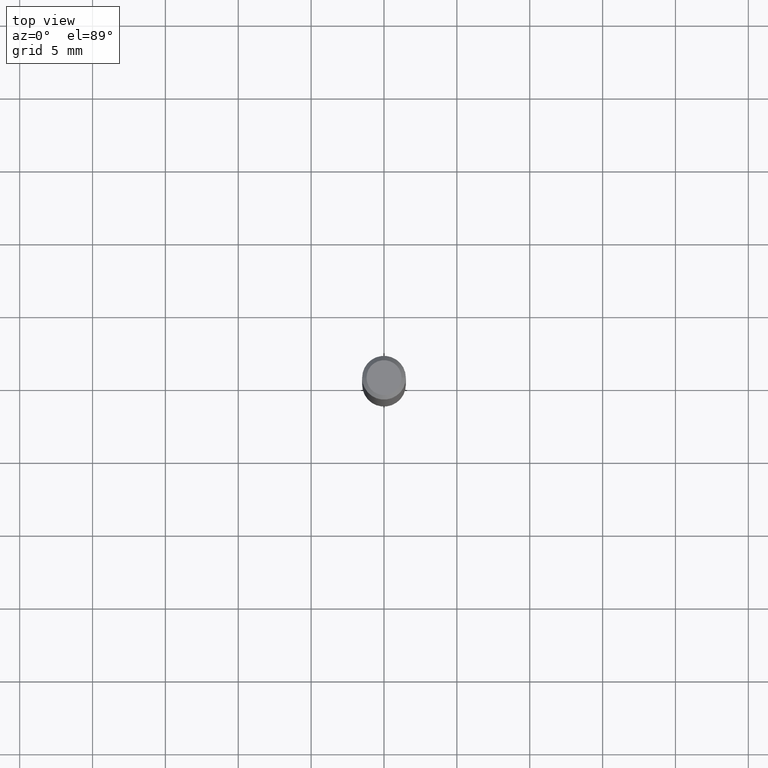
[diagram: clean part render]
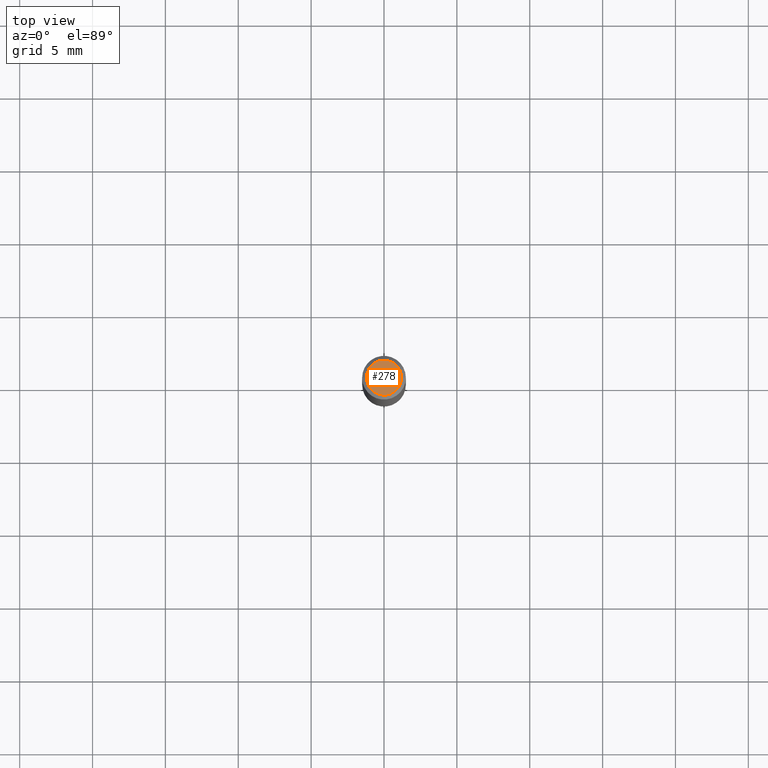
[diagram: same view with one face highlighted and labeled with its STEP entity id]
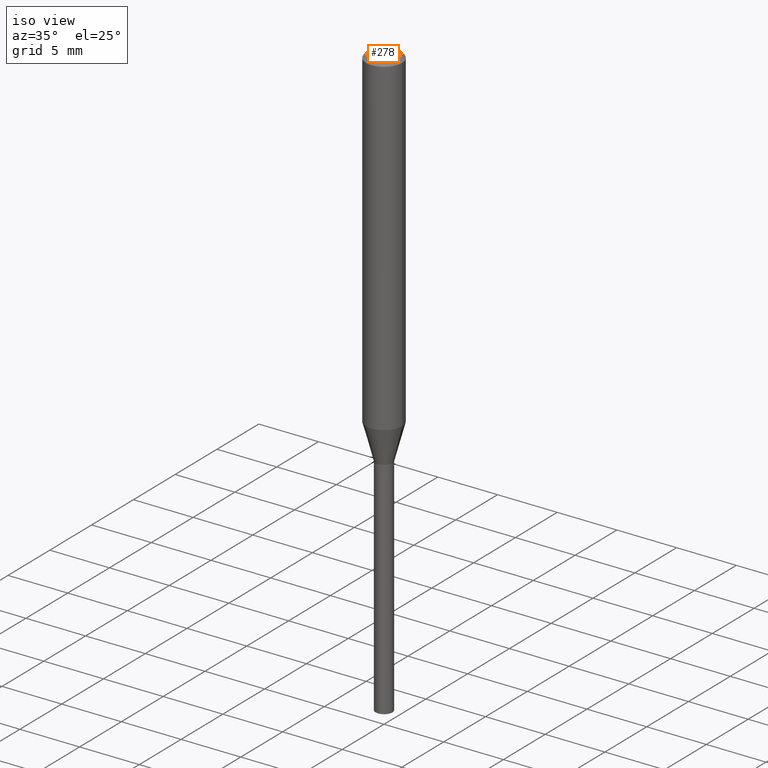
[diagram: same view with one face highlighted and labeled with its STEP entity id]
A machine part, top view. The second image highlights one B-rep face of the part: STEP entity #278.
A second angle (iso view) of the same face is appended — the face is thin or edge-on in the first view.
In plain terms, the highlighted planar face has unit normal (0, -0, -1).
Its self-contained STEP definition (entity closure, byte-faithful):
#1 = VERTEX_POINT ( 'NONE', #168 ) ;
#105 = CARTESIAN_POINT ( 'NONE',  ( 4.132873053354867254E-48, -5.900647395337818946E-34, -1.690012582823346072E-19 ) ) ;
#120 = CIRCLE ( 'NONE', #208, 0.04724000000000000421 ) ;
#129 = EDGE_CURVE ( 'NONE', #1, #463, #149, .T. ) ;
#143 = CARTESIAN_POINT ( 'NONE',  ( 8.265746106709734507E-48, -1.180129479067563789E-33, -3.380025165646692144E-19 ) ) ;
#149 = CIRCLE ( 'NONE', #450, 0.04724000000000000421 ) ;
#162 = ORIENTED_EDGE ( 'NONE', *, *, #129, .T. ) ;
#168 = CARTESIAN_POINT ( 'NONE',  ( -0.04724000000000000421, 3.504923541997677355E-16, -3.380025165670481712E-19 ) ) ;
#202 = EDGE_CURVE ( 'NONE', #463, #1, #120, .T. ) ;
#208 = AXIS2_PLACEMENT_3D ( 'NONE', #381, #454, #390 ) ;
#221 = EDGE_LOOP ( 'NONE', ( #162, #489 ) ) ;
#238 = FACE_OUTER_BOUND ( 'NONE', #221, .T. ) ;
#252 = DIRECTION ( 'NONE',  ( -1.000000000000000000, 6.982962677686265922E-15, -4.876176775795935793E-29 ) ) ;
#259 = DIRECTION ( 'NONE',  ( 1.000000000000000000, -6.982962677686266711E-15, 4.876185090822587894E-29 ) ) ;
#278 = ADVANCED_FACE ( 'NONE', ( #238 ), #448, .F. ) ;
#288 = AXIS2_PLACEMENT_3D ( 'NONE', #105, #292, #252 ) ;
#292 = DIRECTION ( 'NONE',  ( 2.438088387897960049E-29, -3.491481338843145188E-15, -1.000000000000000000 ) ) ;
#301 = DIRECTION ( 'NONE',  ( -2.445468806185136597E-29, 3.491481338843145583E-15, 1.000000000000000000 ) ) ;
#381 = CARTESIAN_POINT ( 'NONE',  ( 8.265746106709734507E-48, -1.180129479067563789E-33, -3.380025165646692144E-19 ) ) ;
#390 = DIRECTION ( 'NONE',  ( 1.000000000000000000, -6.982962677686266711E-15, 4.876185090822587894E-29 ) ) ;
#441 = CARTESIAN_POINT ( 'NONE',  ( 0.04724000000000000421, -3.852183633974369345E-16, -3.380025165621689721E-19 ) ) ;
#448 = PLANE ( 'NONE',  #288 ) ;
#450 = AXIS2_PLACEMENT_3D ( 'NONE', #143, #301, #259 ) ;
#454 = DIRECTION ( 'NONE',  ( -2.445468806185136597E-29, 3.491481338843145583E-15, 1.000000000000000000 ) ) ;
#463 = VERTEX_POINT ( 'NONE', #441 ) ;
#489 = ORIENTED_EDGE ( 'NONE', *, *, #202, .T. ) ;